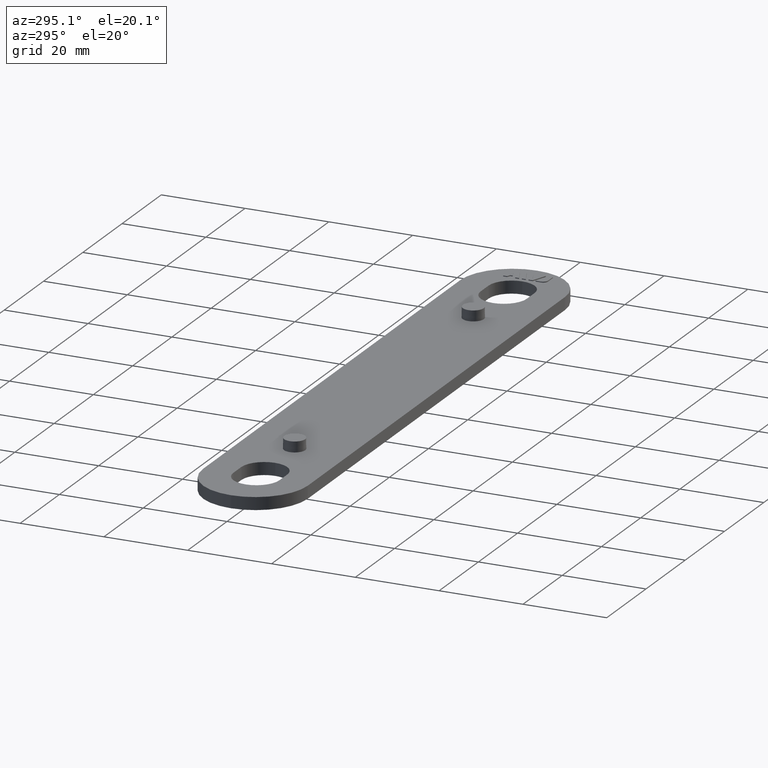
[diagram: clean part render]
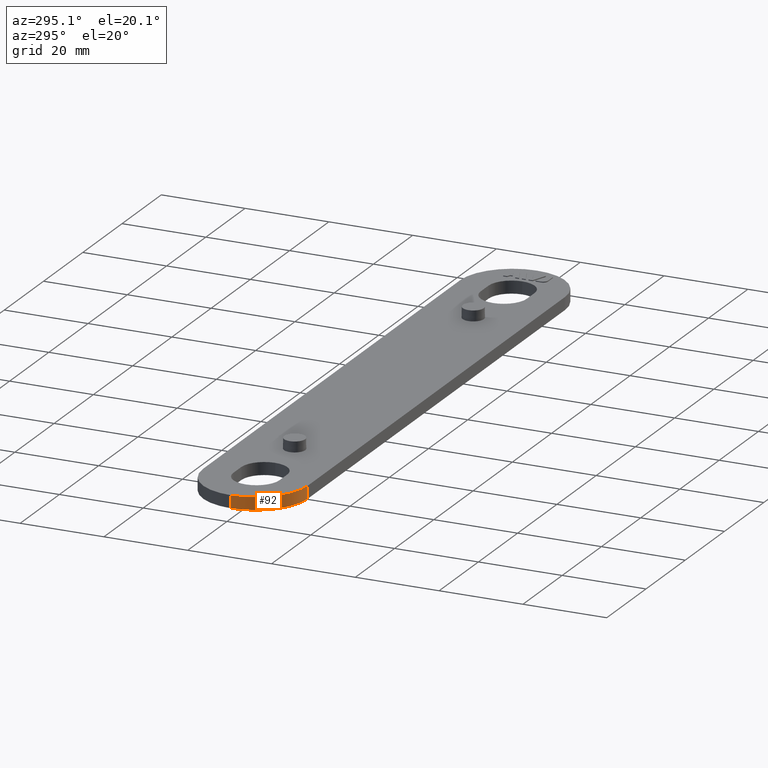
[diagram: same view with one face highlighted and labeled with its STEP entity id]
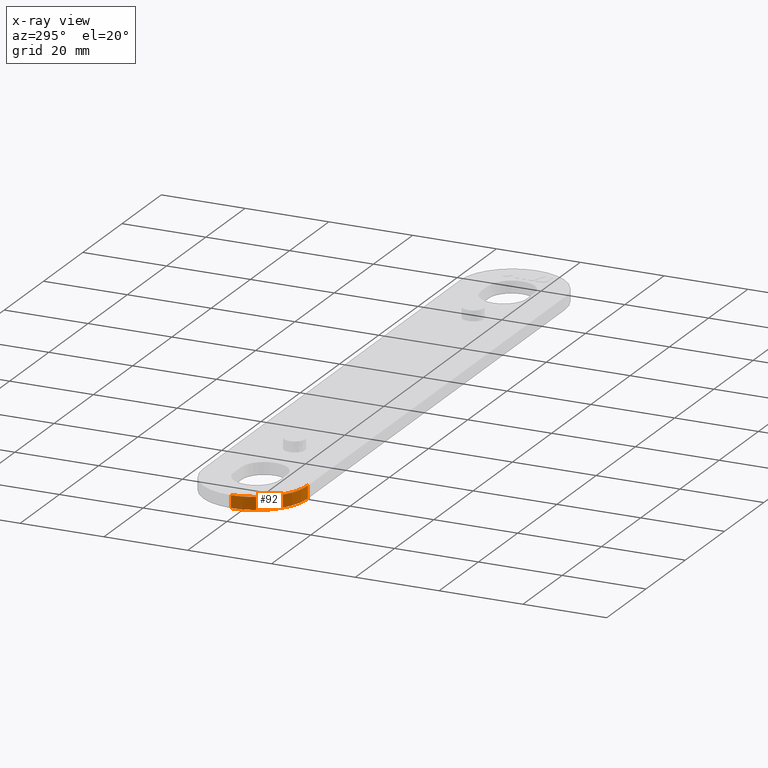
[diagram: x-ray of the same camera — body ghosted, the highlighted face saturated]
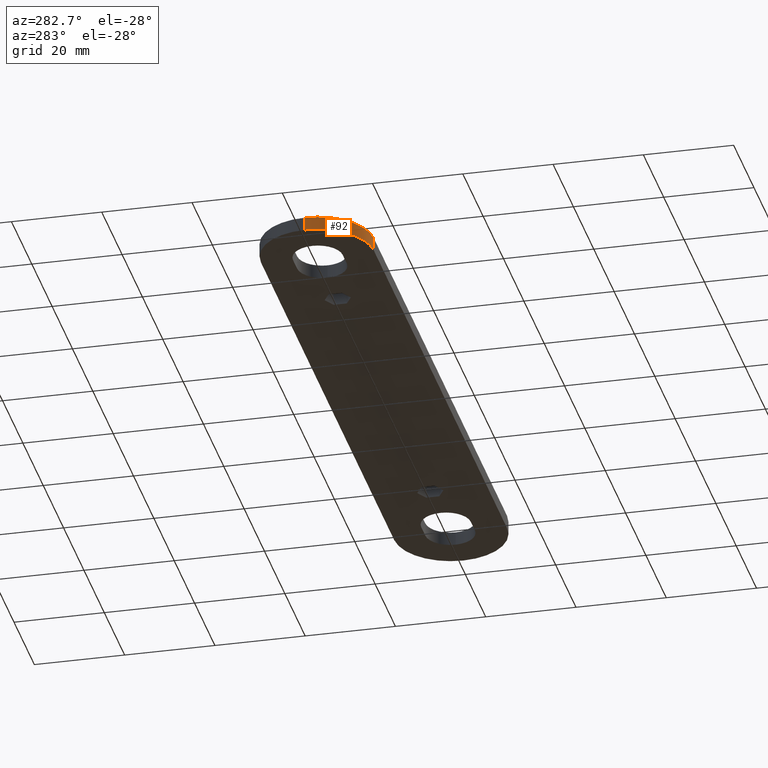
[diagram: same view with one face highlighted and labeled with its STEP entity id]
A machine part, auxiliary view. The second image highlights one B-rep face of the part: STEP entity #92.
The next image is the same camera in x-ray: the body ghosted, the highlighted face saturated — about 0% of this face is hidden behind the body in this view.
A second angle (auxiliary view) of the same face is appended — the face is thin or edge-on in the first view.
In plain terms, the highlighted cylindrical surface (partial cylindrical patch) has radius 12.5 mm, axis along (0, -0, -1).
Its self-contained STEP definition (entity closure, byte-faithful):
#92 = ADVANCED_FACE( '', ( #194 ), #195, .T. );
#194 = FACE_OUTER_BOUND( '', #351, .T. );
#195 = CYLINDRICAL_SURFACE( '', #352, 12.5000000000000 );
#351 = EDGE_LOOP( '', ( #654, #655, #656, #657 ) );
#352 = AXIS2_PLACEMENT_3D( '', #658, #659, #660 );
#654 = ORIENTED_EDGE( '', *, *, #1050, .T. );
#655 = ORIENTED_EDGE( '', *, *, #1133, .F. );
#656 = ORIENTED_EDGE( '', *, *, #1115, .F. );
#657 = ORIENTED_EDGE( '', *, *, #1134, .T. );
#658 = CARTESIAN_POINT( '', ( -65.4999999999999, 5.20417042793042E-015, -4.16333634234434E-014 ) );
#659 = DIRECTION( '', ( 2.15239444120292E-046, -6.12303176911189E-017, -1.00000000000000 ) );
#660 = DIRECTION( '', ( -5.39030083589187E-015, -1.00000000000000, 6.12303176911189E-017 ) );
#1050 = EDGE_CURVE( '', #1249, #1247, #1250, .T. );
#1115 = EDGE_CURVE( '', #1371, #1373, #1374, .T. );
#1133 = EDGE_CURVE( '', #1373, #1247, #1397, .T. );
#1134 = EDGE_CURVE( '', #1371, #1249, #1398, .T. );
#1247 = VERTEX_POINT( '', #1559 );
#1249 = VERTEX_POINT( '', #1561 );
#1250 = CIRCLE( '', #1562, 12.5000000000000 );
#1371 = VERTEX_POINT( '', #1727 );
#1373 = VERTEX_POINT( '', #1730 );
#1374 = CIRCLE( '', #1731, 12.5000000000000 );
#1397 = LINE( '', #1768, #1769 );
#1398 = LINE( '', #1770, #1771 );
#1559 = CARTESIAN_POINT( '', ( -77.9999999999999, 1.57962022368646E-014, 2.99999999999996 ) );
#1561 = CARTESIAN_POINT( '', ( -65.4999999999999, -12.5000000000000, 2.99999999999996 ) );
#1562 = AXIS2_PLACEMENT_3D( '', #1982, #1983, #1984 );
#1727 = CARTESIAN_POINT( '', ( -65.4999999999999, -12.5000000000000, -4.08679844523044E-014 ) );
#1730 = CARTESIAN_POINT( '', ( -77.9999999999999, 1.56125112837913E-014, -4.16333634234434E-014 ) );
#1731 = AXIS2_PLACEMENT_3D( '', #2087, #2088, #2089 );
#1768 = CARTESIAN_POINT( '', ( -77.9999999999999, 1.56125112837913E-014, -4.16333634234434E-014 ) );
#1769 = VECTOR( '', #2113, 1000.00000000000 );
#1770 = CARTESIAN_POINT( '', ( -65.4999999999999, -12.5000000000000, -4.08679844523044E-014 ) );
#1771 = VECTOR( '', #2114, 1000.00000000000 );
#1982 = CARTESIAN_POINT( '', ( -65.4999999999999, 5.38786138100378E-015, 2.99999999999996 ) );
#1983 = DIRECTION( '', ( 8.96831017167885E-048, -6.12303176911189E-017, -1.00000000000000 ) );
#1984 = DIRECTION( '', ( 9.49408737391240E-016, 1.00000000000000, -6.12303176911189E-017 ) );
#2087 = CARTESIAN_POINT( '', ( -65.4999999999999, 5.20417042793042E-015, -4.16333634234434E-014 ) );
#2088 = DIRECTION( '', ( 8.96831017167885E-048, -6.12303176911189E-017, -1.00000000000000 ) );
#2089 = DIRECTION( '', ( 9.49408737391240E-016, 1.00000000000000, -6.12303176911189E-017 ) );
#2113 = DIRECTION( '', ( 0.000000000000000, 6.12303176911189E-017, 1.00000000000000 ) );
#2114 = DIRECTION( '', ( 0.000000000000000, 6.12303176911189E-017, 1.00000000000000 ) );